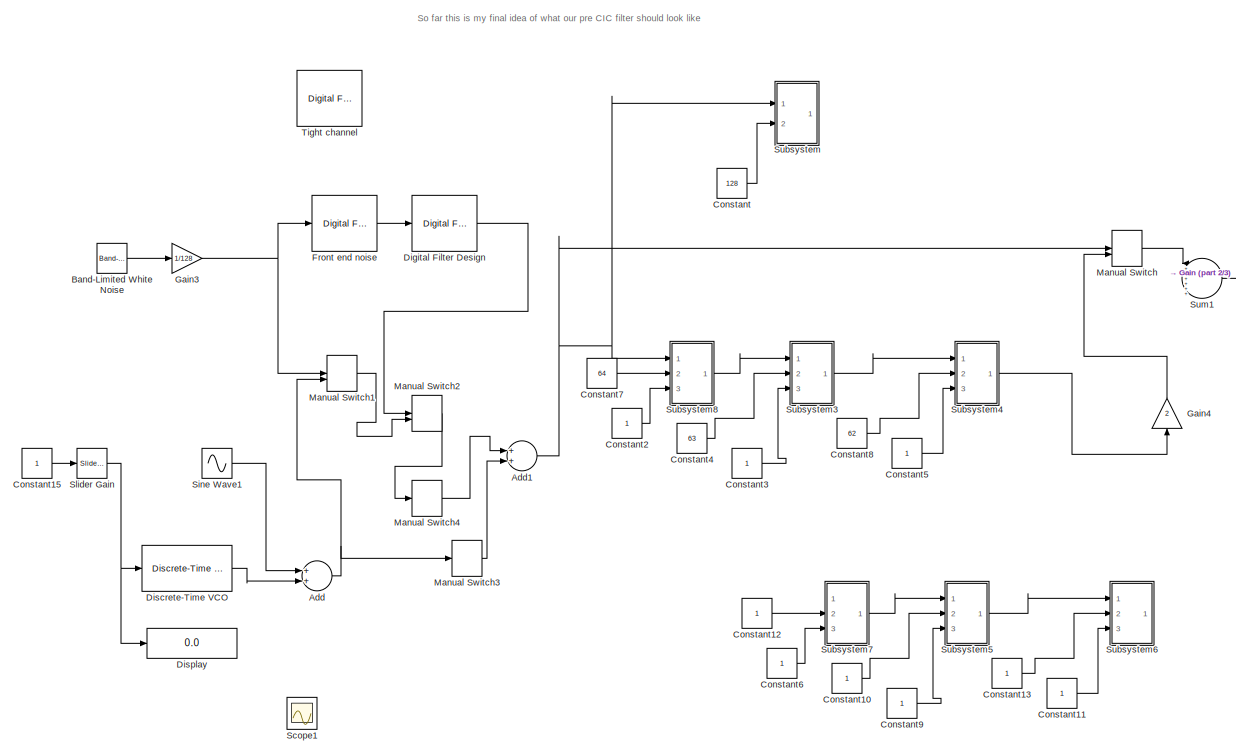
[diagram: root canvas - part 1/3, middle left region]
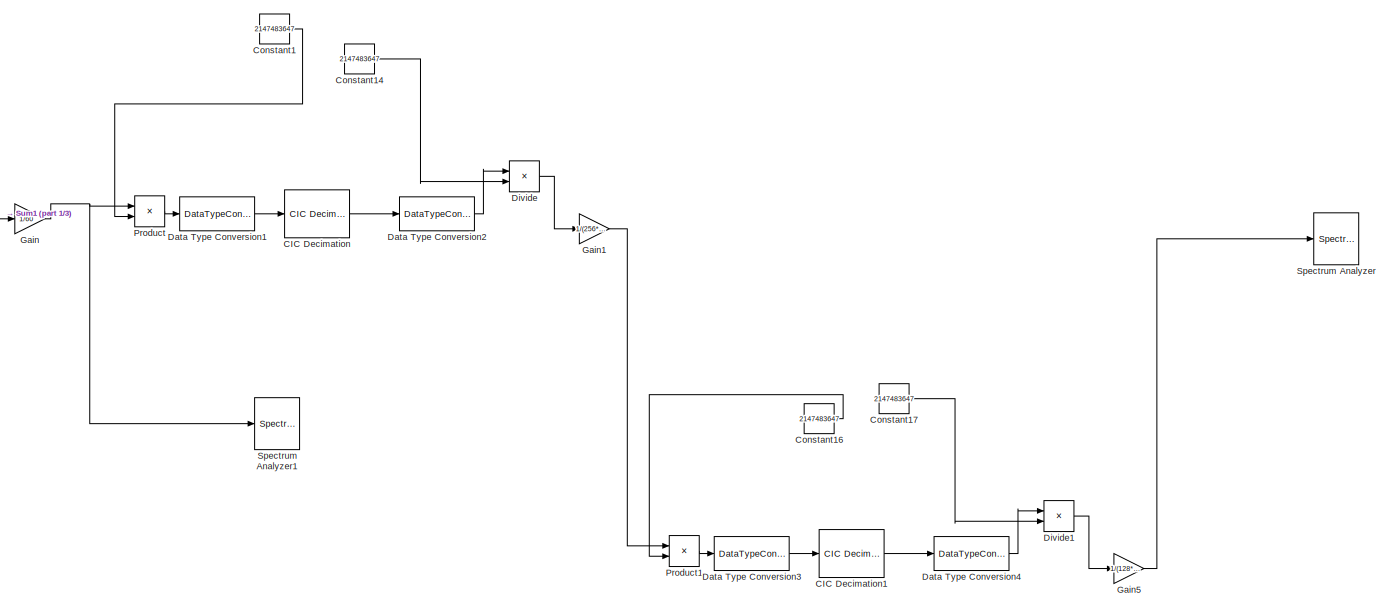
[diagram: root canvas - part 2/3, middle right region]
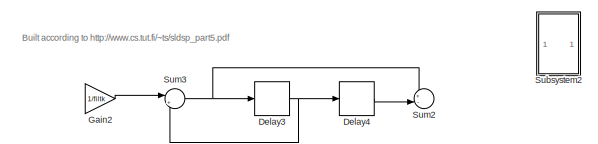
[diagram: root canvas - part 3/3, bottom left region]
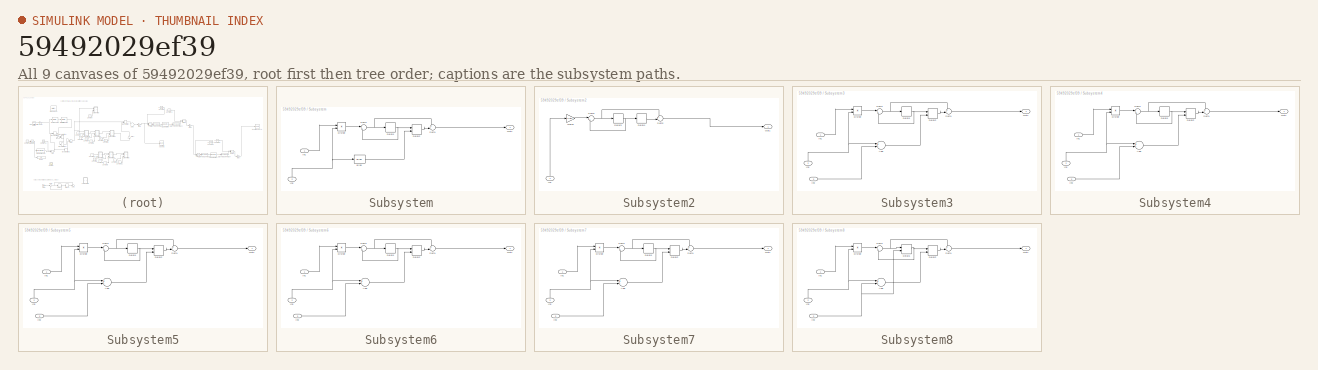
[diagram: thumbnail index - all 9 canvases of the model, root first then tree order]
MODEL slx_59492029ef39
KIND model
BLOCK [Sum] Add
  InputSameDT = off
  OutDataTypeStr = Inherit: Inherit via internal rule
  Ports = [2, 1]
  SaturateOnIntegerOverflow = off
BLOCK [Sum] Add1
  InputSameDT = off
  OutDataTypeStr = Inherit: Inherit via internal rule
  Ports = [2, 1]
  SaturateOnIntegerOverflow = off
BLOCK [Reference] Band-Limited White Noise  REF=simulink/Sources/Band-Limited
White Noise
  Cov = [0.0001]
  Ports = [0, 1]
  SourceBlock = simulink/Sources/Band-Limited\nWhite Noise
  SourceType = Band-Limited White Noise.
  Ts = 1/250E6
  VectorParams1D = on
  seed = [23341]
BLOCK [Reference] CIC Decimation  REF=dspmlti4/CIC
Decimation
  BPS = [16 16 16 16]
  FLPS = 0
  M = 1
  N = 8
  Ports = [1, 1]
  R = 6
  RateOptions = Allow multirate processing
  SourceBlock = dspmlti4/CIC\nDecimation
  SourceType = CIC Decimation
  UserDataPersistent = on
  filtFrom = Dialog
  filterInternals = Full precision
  filtobj = Hm_decim
  framing = Maintain input frame rate
  ftype = Decimator
  launchFVT = off
  outputFracLength = 0
  outputWordLength = 32
BLOCK [Reference] CIC Decimation1  REF=dspmlti4/CIC
Decimation
  BPS = [16 16 16 16]
  FLPS = 0
  M = 1
  N = 8
  Ports = [1, 1]
  R = 8
  RateOptions = Allow multirate processing
  SourceBlock = dspmlti4/CIC\nDecimation
  SourceType = CIC Decimation
  UserDataPersistent = on
  filtFrom = Dialog
  filterInternals = Full precision
  filtobj = Hm_decim
  framing = Maintain input frame rate
  ftype = Decimator
  launchFVT = off
  outputFracLength = 0
  outputWordLength = 32
BLOCK [Constant] Constant
  Value = 128
BLOCK [Constant] Constant1
  Value = 2147483647
BLOCK [Constant] Constant10
BLOCK [Constant] Constant11
BLOCK [Constant] Constant12
BLOCK [Constant] Constant13
BLOCK [Constant] Constant14
  Value = 2147483647
BLOCK [Constant] Constant15
  SampleTime = 1/250E6
BLOCK [Constant] Constant16
  Value = 2147483647
BLOCK [Constant] Constant17
  Value = 2147483647
BLOCK [Constant] Constant2
BLOCK [Constant] Constant3
BLOCK [Constant] Constant4
  Value = 63
BLOCK [Constant] Constant5
BLOCK [Constant] Constant6
BLOCK [Constant] Constant7
  Value = 64
BLOCK [Constant] Constant8
  Value = 62
BLOCK [Constant] Constant9
BLOCK [DataTypeConversion] Data Type Conversion1
  OutDataTypeStr = int32
  RndMeth = Floor
  SaturateOnIntegerOverflow = off
BLOCK [DataTypeConversion] Data Type Conversion2
  OutDataTypeStr = double
  RndMeth = Floor
  SaturateOnIntegerOverflow = off
BLOCK [DataTypeConversion] Data Type Conversion3
  OutDataTypeStr = int32
  RndMeth = Floor
  SaturateOnIntegerOverflow = off
BLOCK [DataTypeConversion] Data Type Conversion4
  OutDataTypeStr = double
  RndMeth = Floor
  SaturateOnIntegerOverflow = off
BLOCK [Delay] Delay3
  Commented = on
  DelayLength = 1
  InitialCondition = 0
  InputPortMap = u0
  Ports = [1, 1]
BLOCK [Delay] Delay4
  Commented = on
  DelayLength = filtk-1
  InitialCondition = 0
  InputPortMap = u0
  Ports = [1, 1]
BLOCK [Reference] Digital Filter Design  REF=dsparch4/Digital
Filter Design
  Ports = [1, 1]
  SourceBlock = dsparch4/Digital\nFilter Design
  SourceType = Digital Filter Design
  UserDataPersistent = on
  mwdsp_browser_bugfix_var = off
BLOCK [Reference] Discrete-Time VCO  REF=commsynccomp2/Discrete-Time
VCO
  Ac = 4
  Fc = 0
  Kc = 10
  Ph = 0
  Ports = [1, 1]
  SourceBlock = commsynccomp2/Discrete-Time\nVCO
  SourceType = Discrete-Time VCO
  ts = 1/250E6
BLOCK [Display] Display
  Commented = on
  Decimation = 1
  Ports = [1]
BLOCK [Product] Divide
  InputSameDT = off
  Inputs = */
  OutDataTypeStr = Inherit: Inherit via internal rule
  Ports = [2, 1]
  RndMeth = Floor
  SaturateOnIntegerOverflow = off
BLOCK [Product] Divide1
  InputSameDT = off
  Inputs = */
  OutDataTypeStr = Inherit: Inherit via internal rule
  Ports = [2, 1]
  RndMeth = Floor
  SaturateOnIntegerOverflow = off
BLOCK [Reference] Front end noise   REF=dsparch4/Digital
Filter Design
  Commented = through
  Ports = [1, 1]
  SourceBlock = dsparch4/Digital\nFilter Design
  SourceType = Digital Filter Design
  UserDataPersistent = on
  mwdsp_browser_bugfix_var = off
BLOCK [Gain] Gain
  Gain = 1/60
  OutDataTypeStr = Inherit: Inherit via internal rule
  ParamDataTypeStr = Inherit: Inherit via internal rule
  SaturateOnIntegerOverflow = off
BLOCK [Gain] Gain1
  Gain = 1/(256*1024)
  OutDataTypeStr = Inherit: Inherit via internal rule
  ParamDataTypeStr = Inherit: Inherit via internal rule
  SaturateOnIntegerOverflow = off
BLOCK [Gain] Gain2
  Commented = on
  Gain = 1/filtk
  OutDataTypeStr = Inherit: Inherit via internal rule
  ParamDataTypeStr = Inherit: Inherit via internal rule
  SaturateOnIntegerOverflow = off
BLOCK [Gain] Gain3
  Gain = 1/128
  OutDataTypeStr = Inherit: Inherit via internal rule
  ParamDataTypeStr = Inherit: Inherit via internal rule
  SaturateOnIntegerOverflow = off
BLOCK [Gain] Gain4
  Gain = 2
  OutDataTypeStr = Inherit: Inherit via internal rule
  ParamDataTypeStr = Inherit: Inherit via internal rule
  SaturateOnIntegerOverflow = off
BLOCK [Gain] Gain5
  Gain = 1/(128*1024)
  OutDataTypeStr = Inherit: Inherit via internal rule
  ParamDataTypeStr = Inherit: Inherit via internal rule
  SaturateOnIntegerOverflow = off
BLOCK [ManualSwitch] Manual Switch
BLOCK [ManualSwitch] Manual Switch1
BLOCK [ManualSwitch] Manual Switch2
BLOCK [ManualSwitch] Manual Switch3
  CurrentSetting = 0
BLOCK [ManualSwitch] Manual Switch4
BLOCK [Product] Product
  InputSameDT = off
  OutDataTypeStr = Inherit: Inherit via internal rule
  Ports = [2, 1]
  RndMeth = Floor
  SaturateOnIntegerOverflow = off
BLOCK [Product] Product1
  InputSameDT = off
  OutDataTypeStr = Inherit: Inherit via internal rule
  Ports = [2, 1]
  RndMeth = Floor
  SaturateOnIntegerOverflow = off
BLOCK [Scope] Scope1
  Commented = on
  Floating = off
  LimitDataPoints = off
  MaxDataPoints = 50000
  NumInputPorts = 1
  Ports = [1]
  SaveName = ScopeData1
  ShowLegends = off
  TimeRange = 0.0001
  YMax = 1
  YMin = -1
BLOCK [Sin] Sine Wave1
  Amplitude = 0
  Frequency = 1E6*pi*2
  Ports = [0, 1]
  SampleTime = 1/250E6
BLOCK [Reference] Slider Gain  REF=simulink/Math
Operations/Slider
Gain
  Ports = [1, 1]
  SourceBlock = simulink/Math\nOperations/Slider\nGain
  SourceType = Slider Gain
  gain = 25000.0125
  high = 25000001.25
  low = 0
BLOCK [SpectrumAnalyzer] Spectrum Analyzer
  Ports = [1]
  ScopeSpecificationString = spbscopes.SpectrumAnalyzerBlockCfg('CurrentConfiguration', extmgr.ConfigurationSet(extmgr.Configuration('Core','General UI',true),extmgr.Configuration('Core','Source UI',true),extmgr.Configuration('Sources','WiredSimulink',true),extmgr.Configuration('Sources','Simulink',false),extmgr.Configuration('Sources','File',false),extmgr.Configuration('Sources','Workspace',false),extmgr.Configuration('Sourc...<+7171ch>
BLOCK [SpectrumAnalyzer] Spectrum Analyzer1
  Ports = [1]
  ScopeSpecificationString = spbscopes.SpectrumAnalyzerBlockCfg('CurrentConfiguration', extmgr.ConfigurationSet(extmgr.Configuration('Core','General UI',true),extmgr.Configuration('Core','Source UI',true),extmgr.Configuration('Sources','WiredSimulink',true),extmgr.Configuration('Sources','Simulink',false),extmgr.Configuration('Sources','File',false),extmgr.Configuration('Sources','Workspace',false),extmgr.Configuration('Sourc...<+7130ch>
BLOCK [SubSystem] Subsystem
  Ports = [2, 1]
  RequestExecContextInheritance = off
BLOCK [Bias] Subsystem/Bias
  Bias = -1
  SaturateOnIntegerOverflow = off
BLOCK [Delay] Subsystem/Delay1
  DelayLength = 1
  InitialCondition = 0
  InputPortMap = u0
  Ports = [1, 1]
BLOCK [Delay] Subsystem/Delay2
  DelayLength = filtk-1
  DelayLengthSource = Input port
  InitialCondition = 0
  InputPortMap = u0,p1
  Ports = [2, 1]
BLOCK [Product] Subsystem/Divide
  InputSameDT = off
  Inputs = */
  OutDataTypeStr = Inherit: Inherit via internal rule
  Ports = [2, 1]
  RndMeth = Floor
  SaturateOnIntegerOverflow = off
BLOCK [Inport] Subsystem/In1
  IconDisplay = Port number
BLOCK [Inport] Subsystem/In2
  IconDisplay = Port number
  Port = 2
BLOCK [Outport] Subsystem/Out1
  IconDisplay = Port number
BLOCK [Sum] Subsystem/Sum1
  IconShape = round
  InputSameDT = off
  Inputs = +-|
  OutDataTypeStr = Inherit: Inherit via internal rule
  Ports = [2, 1]
  SaturateOnIntegerOverflow = off
BLOCK [Sum] Subsystem/Sum4
  IconShape = round
  InputSameDT = off
  Inputs = |++
  OutDataTypeStr = Inherit: Inherit via internal rule
  Ports = [2, 1]
  SaturateOnIntegerOverflow = off
BLOCK [SubSystem] Subsystem2
  Commented = on
  Ports = [1, 1]
  RequestExecContextInheritance = off
BLOCK [Delay] Subsystem2/Delay3
  DelayLength = 1
  InitialCondition = 0
  InputPortMap = u0
  Ports = [1, 1]
BLOCK [Delay] Subsystem2/Delay4
  DelayLength = filtk-1
  InitialCondition = 0
  InputPortMap = u0
  Ports = [1, 1]
BLOCK [Gain] Subsystem2/Gain3
  Gain = 1/filtk
  OutDataTypeStr = Inherit: Inherit via internal rule
  ParamDataTypeStr = Inherit: Inherit via internal rule
  SaturateOnIntegerOverflow = off
BLOCK [Inport] Subsystem2/In1
  IconDisplay = Port number
BLOCK [Outport] Subsystem2/Out1
  IconDisplay = Port number
BLOCK [Sum] Subsystem2/Sum2
  IconShape = round
  InputSameDT = off
  Inputs = +-|
  OutDataTypeStr = Inherit: Inherit via internal rule
  Ports = [2, 1]
  SaturateOnIntegerOverflow = off
BLOCK [Sum] Subsystem2/Sum3
  IconShape = round
  InputSameDT = off
  Inputs = |++
  OutDataTypeStr = Inherit: Inherit via internal rule
  Ports = [2, 1]
  SaturateOnIntegerOverflow = off
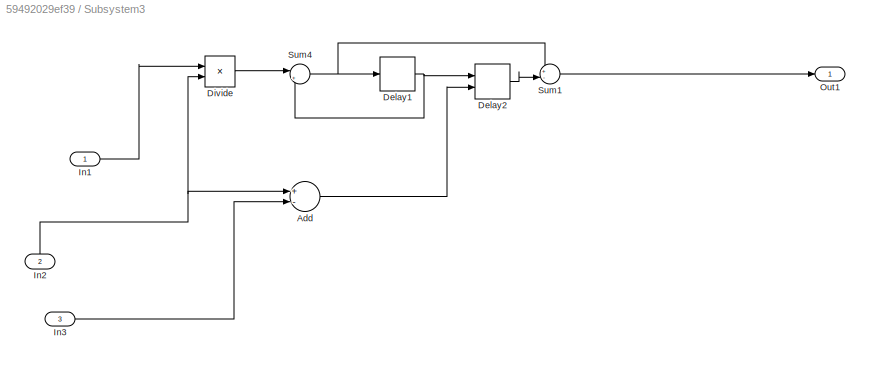
BLOCK [SubSystem] Subsystem3
  Ports = [3, 1]
  RequestExecContextInheritance = off
BLOCK [Sum] Subsystem3/Add
  InputSameDT = off
  Inputs = +-
  OutDataTypeStr = Inherit: Inherit via internal rule
  Ports = [2, 1]
  SaturateOnIntegerOverflow = off
BLOCK [Delay] Subsystem3/Delay1
  DelayLength = 1
  InitialCondition = 0
  InputPortMap = u0
  Ports = [1, 1]
BLOCK [Delay] Subsystem3/Delay2
  DelayLength = filtk-1
  DelayLengthSource = Input port
  InitialCondition = 0
  InputPortMap = u0,p1
  Ports = [2, 1]
BLOCK [Product] Subsystem3/Divide
  InputSameDT = off
  Inputs = */
  OutDataTypeStr = Inherit: Inherit via internal rule
  Ports = [2, 1]
  RndMeth = Floor
  SaturateOnIntegerOverflow = off
BLOCK [Inport] Subsystem3/In1
  IconDisplay = Port number
BLOCK [Inport] Subsystem3/In2
  IconDisplay = Port number
  Port = 2
BLOCK [Inport] Subsystem3/In3
  IconDisplay = Port number
  Port = 3
BLOCK [Outport] Subsystem3/Out1
  IconDisplay = Port number
BLOCK [Sum] Subsystem3/Sum1
  IconShape = round
  InputSameDT = off
  Inputs = +-|
  OutDataTypeStr = Inherit: Inherit via internal rule
  Ports = [2, 1]
  SaturateOnIntegerOverflow = off
BLOCK [Sum] Subsystem3/Sum4
  IconShape = round
  InputSameDT = off
  Inputs = |++
  OutDataTypeStr = Inherit: Inherit via internal rule
  Ports = [2, 1]
  SaturateOnIntegerOverflow = off
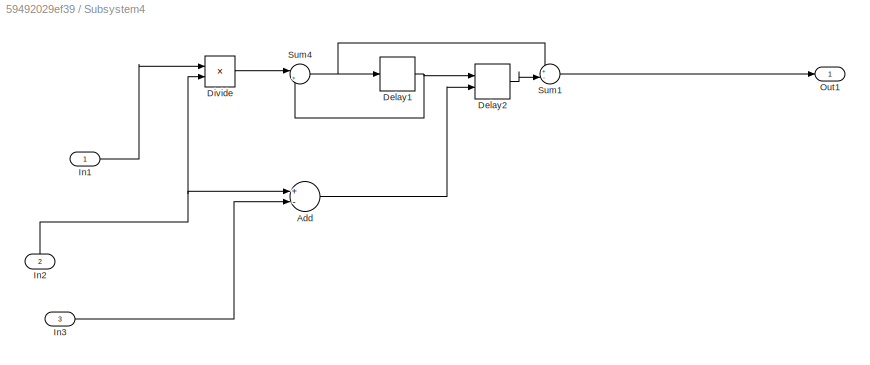
BLOCK [SubSystem] Subsystem4
  Ports = [3, 1]
  RequestExecContextInheritance = off
BLOCK [Sum] Subsystem4/Add
  InputSameDT = off
  Inputs = +-
  OutDataTypeStr = Inherit: Inherit via internal rule
  Ports = [2, 1]
  SaturateOnIntegerOverflow = off
BLOCK [Delay] Subsystem4/Delay1
  DelayLength = 1
  InitialCondition = 0
  InputPortMap = u0
  Ports = [1, 1]
BLOCK [Delay] Subsystem4/Delay2
  DelayLength = filtk-1
  DelayLengthSource = Input port
  InitialCondition = 0
  InputPortMap = u0,p1
  Ports = [2, 1]
BLOCK [Product] Subsystem4/Divide
  InputSameDT = off
  Inputs = */
  OutDataTypeStr = Inherit: Inherit via internal rule
  Ports = [2, 1]
  RndMeth = Floor
  SaturateOnIntegerOverflow = off
BLOCK [Inport] Subsystem4/In1
  IconDisplay = Port number
BLOCK [Inport] Subsystem4/In2
  IconDisplay = Port number
  Port = 2
BLOCK [Inport] Subsystem4/In3
  IconDisplay = Port number
  Port = 3
BLOCK [Outport] Subsystem4/Out1
  IconDisplay = Port number
BLOCK [Sum] Subsystem4/Sum1
  IconShape = round
  InputSameDT = off
  Inputs = +-|
  OutDataTypeStr = Inherit: Inherit via internal rule
  Ports = [2, 1]
  SaturateOnIntegerOverflow = off
BLOCK [Sum] Subsystem4/Sum4
  IconShape = round
  InputSameDT = off
  Inputs = |++
  OutDataTypeStr = Inherit: Inherit via internal rule
  Ports = [2, 1]
  SaturateOnIntegerOverflow = off
BLOCK [SubSystem] Subsystem5
  Ports = [3, 1]
  RequestExecContextInheritance = off
BLOCK [Sum] Subsystem5/Add
  InputSameDT = off
  Inputs = +-
  OutDataTypeStr = Inherit: Inherit via internal rule
  Ports = [2, 1]
  SaturateOnIntegerOverflow = off
BLOCK [Delay] Subsystem5/Delay1
  DelayLength = 1
  InitialCondition = 0
  InputPortMap = u0
  Ports = [1, 1]
BLOCK [Delay] Subsystem5/Delay2
  DelayLength = filtk-1
  DelayLengthSource = Input port
  InitialCondition = 0
  InputPortMap = u0,p1
  Ports = [2, 1]
BLOCK [Product] Subsystem5/Divide
  InputSameDT = off
  Inputs = */
  OutDataTypeStr = Inherit: Inherit via internal rule
  Ports = [2, 1]
  RndMeth = Floor
  SaturateOnIntegerOverflow = off
BLOCK [Inport] Subsystem5/In1
  IconDisplay = Port number
BLOCK [Inport] Subsystem5/In2
  IconDisplay = Port number
  Port = 2
BLOCK [Inport] Subsystem5/In3
  IconDisplay = Port number
  Port = 3
BLOCK [Outport] Subsystem5/Out1
  IconDisplay = Port number
BLOCK [Sum] Subsystem5/Sum1
  IconShape = round
  InputSameDT = off
  Inputs = +-|
  OutDataTypeStr = Inherit: Inherit via internal rule
  Ports = [2, 1]
  SaturateOnIntegerOverflow = off
BLOCK [Sum] Subsystem5/Sum4
  IconShape = round
  InputSameDT = off
  Inputs = |++
  OutDataTypeStr = Inherit: Inherit via internal rule
  Ports = [2, 1]
  SaturateOnIntegerOverflow = off
BLOCK [SubSystem] Subsystem6
  Ports = [3, 1]
  RequestExecContextInheritance = off
BLOCK [Sum] Subsystem6/Add
  InputSameDT = off
  Inputs = +-
  OutDataTypeStr = Inherit: Inherit via internal rule
  Ports = [2, 1]
  SaturateOnIntegerOverflow = off
BLOCK [Delay] Subsystem6/Delay1
  DelayLength = 1
  InitialCondition = 0
  InputPortMap = u0
  Ports = [1, 1]
BLOCK [Delay] Subsystem6/Delay2
  DelayLength = filtk-1
  DelayLengthSource = Input port
  InitialCondition = 0
  InputPortMap = u0,p1
  Ports = [2, 1]
BLOCK [Product] Subsystem6/Divide
  InputSameDT = off
  Inputs = */
  OutDataTypeStr = Inherit: Inherit via internal rule
  Ports = [2, 1]
  RndMeth = Floor
  SaturateOnIntegerOverflow = off
BLOCK [Inport] Subsystem6/In1
  IconDisplay = Port number
BLOCK [Inport] Subsystem6/In2
  IconDisplay = Port number
  Port = 2
BLOCK [Inport] Subsystem6/In3
  IconDisplay = Port number
  Port = 3
BLOCK [Outport] Subsystem6/Out1
  IconDisplay = Port number
BLOCK [Sum] Subsystem6/Sum1
  IconShape = round
  InputSameDT = off
  Inputs = +-|
  OutDataTypeStr = Inherit: Inherit via internal rule
  Ports = [2, 1]
  SaturateOnIntegerOverflow = off
BLOCK [Sum] Subsystem6/Sum4
  IconShape = round
  InputSameDT = off
  Inputs = |++
  OutDataTypeStr = Inherit: Inherit via internal rule
  Ports = [2, 1]
  SaturateOnIntegerOverflow = off
BLOCK [SubSystem] Subsystem7
  Ports = [3, 1]
  RequestExecContextInheritance = off
BLOCK [Sum] Subsystem7/Add
  InputSameDT = off
  Inputs = +-
  OutDataTypeStr = Inherit: Inherit via internal rule
  Ports = [2, 1]
  SaturateOnIntegerOverflow = off
BLOCK [Delay] Subsystem7/Delay1
  DelayLength = 1
  InitialCondition = 0
  InputPortMap = u0
  Ports = [1, 1]
BLOCK [Delay] Subsystem7/Delay2
  DelayLength = filtk-1
  DelayLengthSource = Input port
  InitialCondition = 0
  InputPortMap = u0,p1
  Ports = [2, 1]
BLOCK [Product] Subsystem7/Divide
  InputSameDT = off
  Inputs = */
  OutDataTypeStr = Inherit: Inherit via internal rule
  Ports = [2, 1]
  RndMeth = Floor
  SaturateOnIntegerOverflow = off
BLOCK [Inport] Subsystem7/In1
  IconDisplay = Port number
BLOCK [Inport] Subsystem7/In2
  IconDisplay = Port number
  Port = 2
BLOCK [Inport] Subsystem7/In3
  IconDisplay = Port number
  Port = 3
BLOCK [Outport] Subsystem7/Out1
  IconDisplay = Port number
BLOCK [Sum] Subsystem7/Sum1
  IconShape = round
  InputSameDT = off
  Inputs = +-|
  OutDataTypeStr = Inherit: Inherit via internal rule
  Ports = [2, 1]
  SaturateOnIntegerOverflow = off
BLOCK [Sum] Subsystem7/Sum4
  IconShape = round
  InputSameDT = off
  Inputs = |++
  OutDataTypeStr = Inherit: Inherit via internal rule
  Ports = [2, 1]
  SaturateOnIntegerOverflow = off
BLOCK [SubSystem] Subsystem8
  Ports = [3, 1]
  RequestExecContextInheritance = off
BLOCK [Sum] Subsystem8/Add
  InputSameDT = off
  Inputs = +-
  OutDataTypeStr = Inherit: Inherit via internal rule
  Ports = [2, 1]
  SaturateOnIntegerOverflow = off
BLOCK [Delay] Subsystem8/Delay1
  DelayLength = 1
  DelayLengthSource = Input port
  InitialCondition = 0
  InputPortMap = u0,p1
  Ports = [2, 1]
BLOCK [Delay] Subsystem8/Delay2
  DelayLength = filtk-1
  DelayLengthSource = Input port
  InitialCondition = 0
  InputPortMap = u0,p1
  Ports = [2, 1]
BLOCK [Product] Subsystem8/Divide
  InputSameDT = off
  Inputs = */
  OutDataTypeStr = Inherit: Inherit via internal rule
  Ports = [2, 1]
  RndMeth = Floor
  SaturateOnIntegerOverflow = off
BLOCK [Inport] Subsystem8/In1
  IconDisplay = Port number
BLOCK [Inport] Subsystem8/In2
  IconDisplay = Port number
  Port = 2
BLOCK [Inport] Subsystem8/In3
  IconDisplay = Port number
  Port = 3
BLOCK [Outport] Subsystem8/Out1
  IconDisplay = Port number
BLOCK [Sum] Subsystem8/Sum1
  IconShape = round
  InputSameDT = off
  Inputs = +-|
  OutDataTypeStr = Inherit: Inherit via internal rule
  Ports = [2, 1]
  SaturateOnIntegerOverflow = off
BLOCK [Sum] Subsystem8/Sum4
  IconShape = round
  InputSameDT = off
  Inputs = |++
  OutDataTypeStr = Inherit: Inherit via internal rule
  Ports = [2, 1]
  SaturateOnIntegerOverflow = off
BLOCK [Sum] Sum1
  IconShape = round
  InputSameDT = off
  Inputs = |++++++-
  OutDataTypeStr = Inherit: Inherit via internal rule
  Ports = [7, 1]
  SaturateOnIntegerOverflow = off
BLOCK [Sum] Sum2
  Commented = on
  IconShape = round
  InputSameDT = off
  Inputs = +-|
  OutDataTypeStr = Inherit: Inherit via internal rule
  Ports = [2, 1]
  SaturateOnIntegerOverflow = off
BLOCK [Sum] Sum3
  Commented = on
  IconShape = round
  InputSameDT = off
  Inputs = |++
  OutDataTypeStr = Inherit: Inherit via internal rule
  Ports = [2, 1]
  SaturateOnIntegerOverflow = off
BLOCK [Reference] Tight channel  REF=dsparch4/Digital
Filter Design
  Ports = [1, 1]
  SourceBlock = dsparch4/Digital\nFilter Design
  SourceType = Digital Filter Design
  UserDataPersistent = on
  mwdsp_browser_bugfix_var = off
ANNOTATION (root): Built according to http://www.cs.tut.fi/~ts/sldsp_part5.pdf
ANNOTATION (root): So far this is my final idea of what our pre CIC filter should look like
NET Add1:1 -> Manual Switch:1, Subsystem8:1, Subsystem:1
NET Add:1 -> Manual Switch1:2, Manual Switch3:1
LINE Band-Limited White Noise:1 -> Gain3:1
LINE CIC Decimation1:1 -> Data Type Conversion4:1
LINE CIC Decimation:1 -> Data Type Conversion2:1
LINE Constant10:1 -> Subsystem5:2
LINE Constant11:1 -> Subsystem6:3
LINE Constant12:1 -> Subsystem7:2
LINE Constant13:1 -> Subsystem6:2
LINE Constant14:1 -> Divide:2
LINE Constant15:1 -> Slider Gain:1
LINE Constant16:1 -> Product1:2
LINE Constant17:1 -> Divide1:2
LINE Constant1:1 -> Product:2
LINE Constant2:1 -> Subsystem8:3
LINE Constant3:1 -> Subsystem3:3
LINE Constant4:1 -> Subsystem3:2
LINE Constant5:1 -> Subsystem4:3
LINE Constant6:1 -> Subsystem7:3
LINE Constant7:1 -> Subsystem8:2
LINE Constant8:1 -> Subsystem4:2
LINE Constant9:1 -> Subsystem5:3
LINE Constant:1 -> Subsystem:2
LINE Data Type Conversion1:1 -> CIC Decimation:1
LINE Data Type Conversion2:1 -> Divide:1
LINE Data Type Conversion3:1 -> CIC Decimation1:1
LINE Data Type Conversion4:1 -> Divide1:1
NET Delay3:1 -> Delay4:1, Sum3:2
LINE Delay4:1 -> Sum2:2
LINE Digital Filter Design:1 -> Manual Switch2:1
LINE Discrete-Time VCO:1 -> Add:2
LINE Divide1:1 -> Gain5:1
LINE Divide:1 -> Gain1:1
LINE Front end noise :1 -> Digital Filter Design:1
LINE Gain1:1 -> Product1:1
LINE Gain2:1 -> Sum3:1
NET Gain3:1 -> Front end noise :1, Manual Switch1:1
LINE Gain4:1 -> Manual Switch:2
LINE Gain5:1 -> Spectrum Analyzer:1
NET Gain:1 -> Product:1, Spectrum Analyzer1:1
LINE Manual Switch1:1 -> Manual Switch2:2
LINE Manual Switch2:1 -> Manual Switch4:1
LINE Manual Switch3:1 -> Add1:2
LINE Manual Switch4:1 -> Add1:1
LINE Manual Switch:1 -> Sum1:1
LINE Product1:1 -> Data Type Conversion3:1
LINE Product:1 -> Data Type Conversion1:1
LINE Sine Wave1:1 -> Add:1
NET Slider Gain:1 -> Discrete-Time VCO:1, Display:1
LINE Subsystem/Bias:1 -> Subsystem/Delay2:2
NET Subsystem/Delay1:1 -> Subsystem/Delay2:1, Subsystem/Sum4:2
LINE Subsystem/Delay2:1 -> Subsystem/Sum1:2
LINE Subsystem/Divide:1 -> Subsystem/Sum4:1
LINE Subsystem/In1:1 -> Subsystem/Divide:1
NET Subsystem/In2:1 -> Subsystem/Bias:1, Subsystem/Divide:2
LINE Subsystem/Sum1:1 -> Subsystem/Out1:1
NET Subsystem/Sum4:1 -> Subsystem/Delay1:1, Subsystem/Sum1:1
NET Subsystem2/Delay3:1 -> Subsystem2/Delay4:1, Subsystem2/Sum3:2
LINE Subsystem2/Delay4:1 -> Subsystem2/Sum2:2
LINE Subsystem2/Gain3:1 -> Subsystem2/Sum3:1
LINE Subsystem2/In1:1 -> Subsystem2/Gain3:1
LINE Subsystem2/Sum2:1 -> Subsystem2/Out1:1
NET Subsystem2/Sum3:1 -> Subsystem2/Delay3:1, Subsystem2/Sum2:1
LINE Subsystem3/Add:1 -> Subsystem3/Delay2:2
NET Subsystem3/Delay1:1 -> Subsystem3/Delay2:1, Subsystem3/Sum4:2
LINE Subsystem3/Delay2:1 -> Subsystem3/Sum1:2
LINE Subsystem3/Divide:1 -> Subsystem3/Sum4:1
LINE Subsystem3/In1:1 -> Subsystem3/Divide:1
NET Subsystem3/In2:1 -> Subsystem3/Add:1, Subsystem3/Divide:2
LINE Subsystem3/In3:1 -> Subsystem3/Add:2
LINE Subsystem3/Sum1:1 -> Subsystem3/Out1:1
NET Subsystem3/Sum4:1 -> Subsystem3/Delay1:1, Subsystem3/Sum1:1
LINE Subsystem3:1 -> Subsystem4:1
LINE Subsystem4/Add:1 -> Subsystem4/Delay2:2
NET Subsystem4/Delay1:1 -> Subsystem4/Delay2:1, Subsystem4/Sum4:2
LINE Subsystem4/Delay2:1 -> Subsystem4/Sum1:2
LINE Subsystem4/Divide:1 -> Subsystem4/Sum4:1
LINE Subsystem4/In1:1 -> Subsystem4/Divide:1
NET Subsystem4/In2:1 -> Subsystem4/Add:1, Subsystem4/Divide:2
LINE Subsystem4/In3:1 -> Subsystem4/Add:2
LINE Subsystem4/Sum1:1 -> Subsystem4/Out1:1
NET Subsystem4/Sum4:1 -> Subsystem4/Delay1:1, Subsystem4/Sum1:1
LINE Subsystem4:1 -> Gain4:1
LINE Subsystem5/Add:1 -> Subsystem5/Delay2:2
NET Subsystem5/Delay1:1 -> Subsystem5/Delay2:1, Subsystem5/Sum4:2
LINE Subsystem5/Delay2:1 -> Subsystem5/Sum1:2
LINE Subsystem5/Divide:1 -> Subsystem5/Sum4:1
LINE Subsystem5/In1:1 -> Subsystem5/Divide:1
NET Subsystem5/In2:1 -> Subsystem5/Add:1, Subsystem5/Divide:2
LINE Subsystem5/In3:1 -> Subsystem5/Add:2
LINE Subsystem5/Sum1:1 -> Subsystem5/Out1:1
NET Subsystem5/Sum4:1 -> Subsystem5/Delay1:1, Subsystem5/Sum1:1
LINE Subsystem5:1 -> Subsystem6:1
LINE Subsystem6/Add:1 -> Subsystem6/Delay2:2
NET Subsystem6/Delay1:1 -> Subsystem6/Delay2:1, Subsystem6/Sum4:2
LINE Subsystem6/Delay2:1 -> Subsystem6/Sum1:2
LINE Subsystem6/Divide:1 -> Subsystem6/Sum4:1
LINE Subsystem6/In1:1 -> Subsystem6/Divide:1
NET Subsystem6/In2:1 -> Subsystem6/Add:1, Subsystem6/Divide:2
LINE Subsystem6/In3:1 -> Subsystem6/Add:2
LINE Subsystem6/Sum1:1 -> Subsystem6/Out1:1
NET Subsystem6/Sum4:1 -> Subsystem6/Delay1:1, Subsystem6/Sum1:1
LINE Subsystem7/Add:1 -> Subsystem7/Delay2:2
NET Subsystem7/Delay1:1 -> Subsystem7/Delay2:1, Subsystem7/Sum4:2
LINE Subsystem7/Delay2:1 -> Subsystem7/Sum1:2
LINE Subsystem7/Divide:1 -> Subsystem7/Sum4:1
LINE Subsystem7/In1:1 -> Subsystem7/Divide:1
NET Subsystem7/In2:1 -> Subsystem7/Add:1, Subsystem7/Divide:2
LINE Subsystem7/In3:1 -> Subsystem7/Add:2
LINE Subsystem7/Sum1:1 -> Subsystem7/Out1:1
NET Subsystem7/Sum4:1 -> Subsystem7/Delay1:1, Subsystem7/Sum1:1
LINE Subsystem7:1 -> Subsystem5:1
LINE Subsystem8/Add:1 -> Subsystem8/Delay2:2
NET Subsystem8/Delay1:1 -> Subsystem8/Delay2:1, Subsystem8/Sum4:2
LINE Subsystem8/Delay2:1 -> Subsystem8/Sum1:2
LINE Subsystem8/Divide:1 -> Subsystem8/Sum4:1
LINE Subsystem8/In1:1 -> Subsystem8/Divide:1
NET Subsystem8/In2:1 -> Subsystem8/Add:1, Subsystem8/Divide:2
NET Subsystem8/In3:1 -> Subsystem8/Add:2, Subsystem8/Delay1:2
LINE Subsystem8/Sum1:1 -> Subsystem8/Out1:1
NET Subsystem8/Sum4:1 -> Subsystem8/Delay1:1, Subsystem8/Sum1:1
LINE Subsystem8:1 -> Subsystem3:1
LINE Sum1:1 -> Gain:1
NET Sum3:1 -> Delay3:1, Sum2:1
note: NET lines group one-source signal fan-out (src -> all destinations, sorted); 1:1 wires keep LINE
